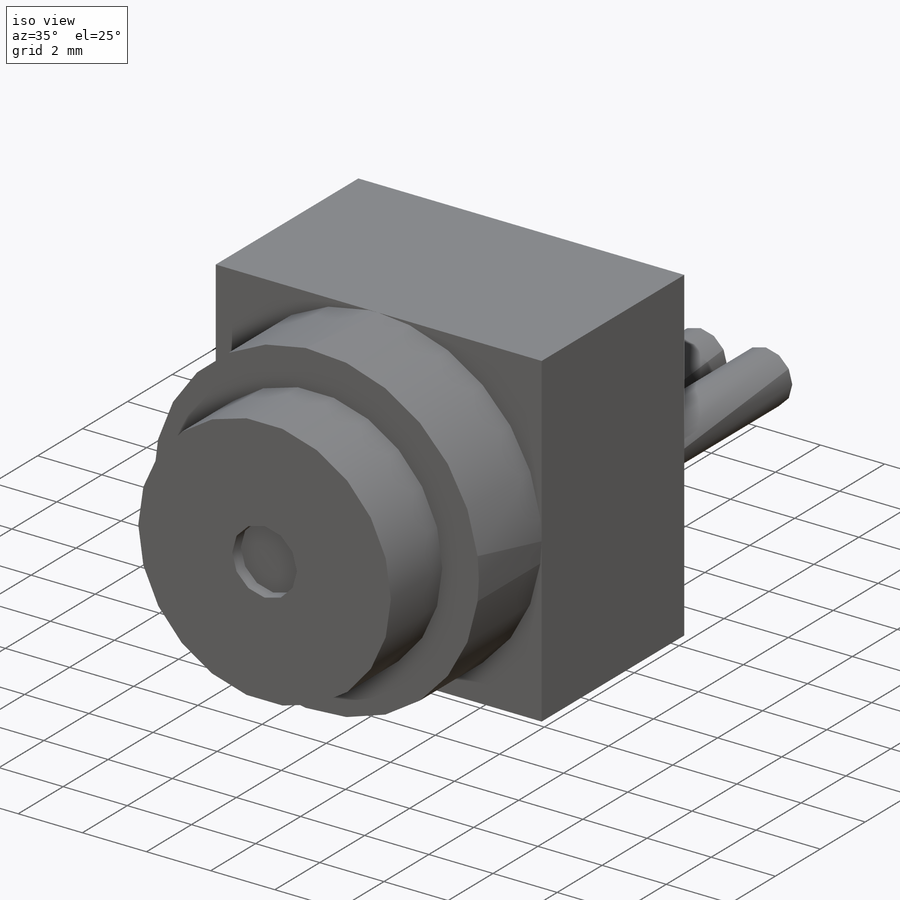
[diagram: iso view]
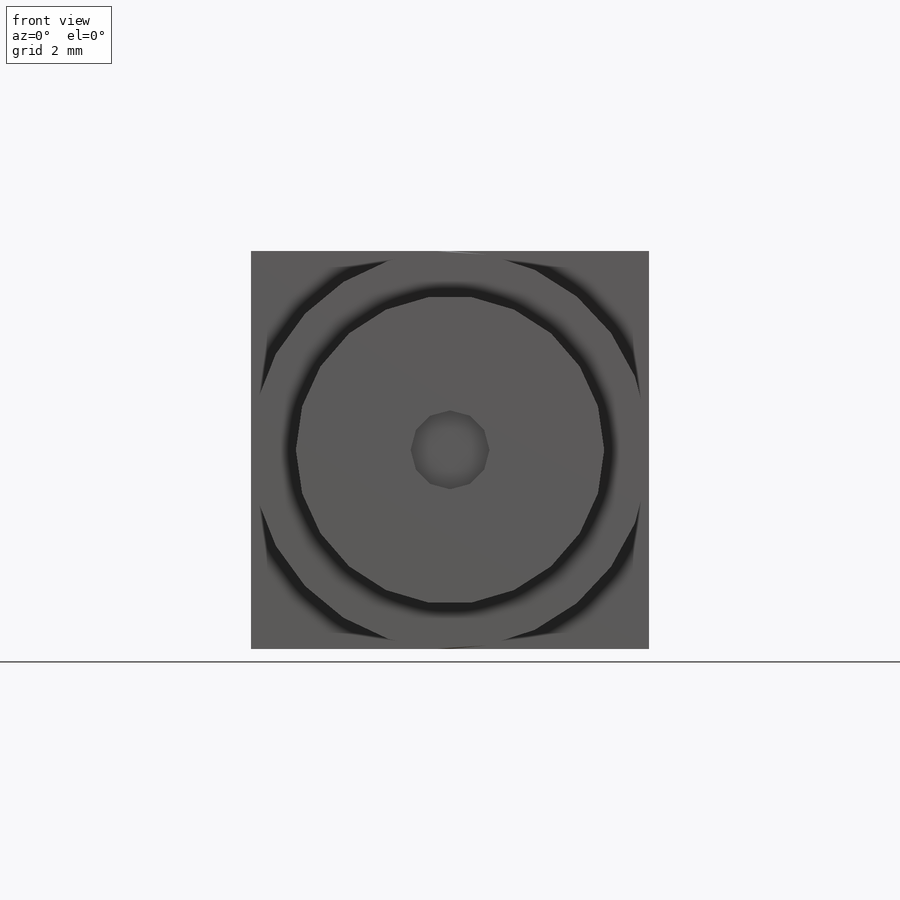
[diagram: front view]
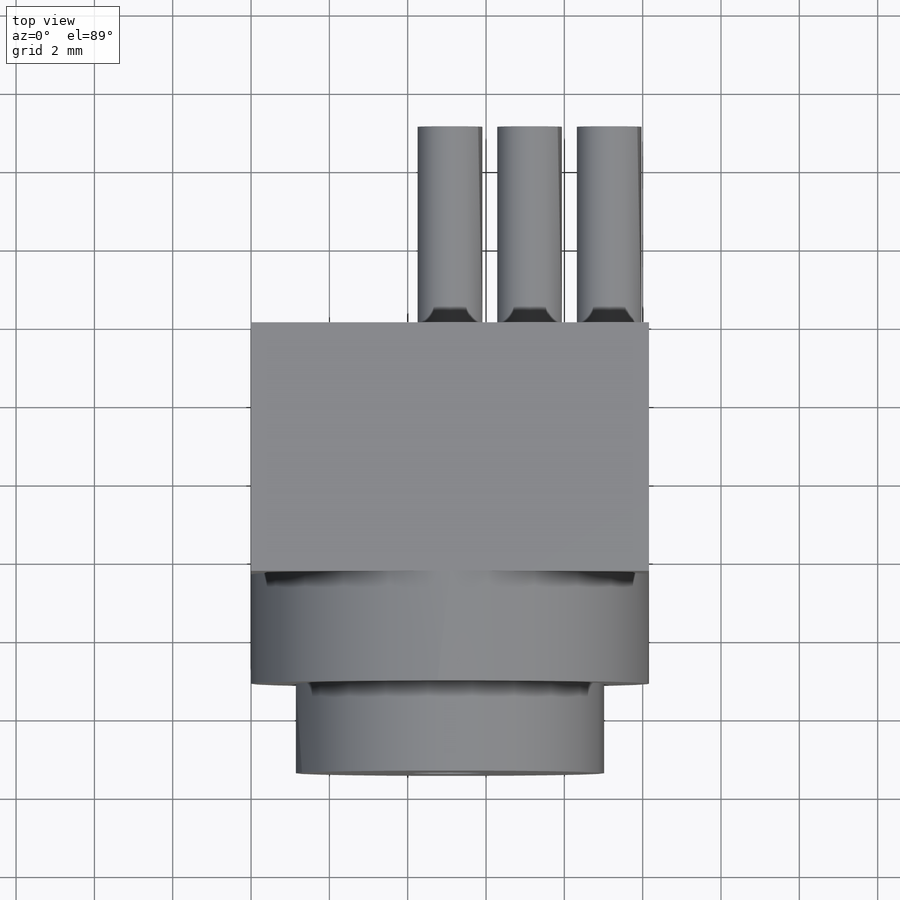
[diagram: top view]
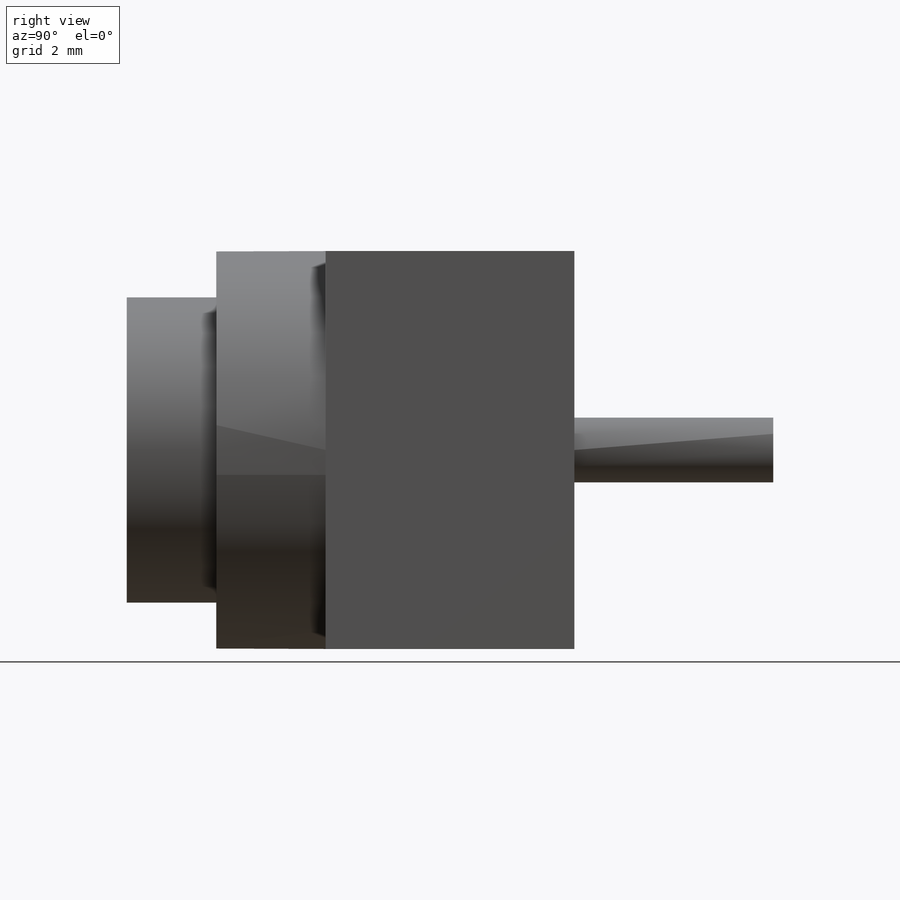
[diagram: right view]
SOLIDWORKS PART (.sldprt)
format: sldprt  version: not decoded by parser v0  size: 207,872 bytes
history: native  units: mm
features: sketch x5, extrude x4, material x1, cut_extrude x1 (+15 scaffold rows collapsed)
feature tree (26):
  scaffold x15  (default folders/planes/origin — collapsed)
  material  "Material <not specified>"
  sketch  "Sketch1"  dims[c1.D3=2.54mm c1.D6=1.778mm c1.D7=1.778mm c1.D1=16.51mm c1.D2=16.764mm c1.D4=1.524mm c1.D5=1.524mm c2.D1=10.16mm c2.D2=10.16mm]
  extrude  "Extrude1"  Depth=6.35mm
  sketch  "Sketch2"  dims[D1=10.16mm]
  extrude  "Extrude2"  Depth=2.794mm
  sketch  "Sketch3"  dims[D1=7.874mm]
  extrude  "Extrude3"  Depth=2.286mm
  sketch  "Sketch4"
  cut_extrude  "Extrude4"  Depth=0.381mm
  sketch  "Sketch5"  dims[D1=1.651mm D2=1.651mm D3=1.651mm D4=2.032mm D5=2.032mm]
  extrude  "Extrude5"  Depth=5.08mm
decode coverage: 9 of 10 modeling features carry decoded parameters
note: suppression state not decoded; provenance and decode notes live in map.json
